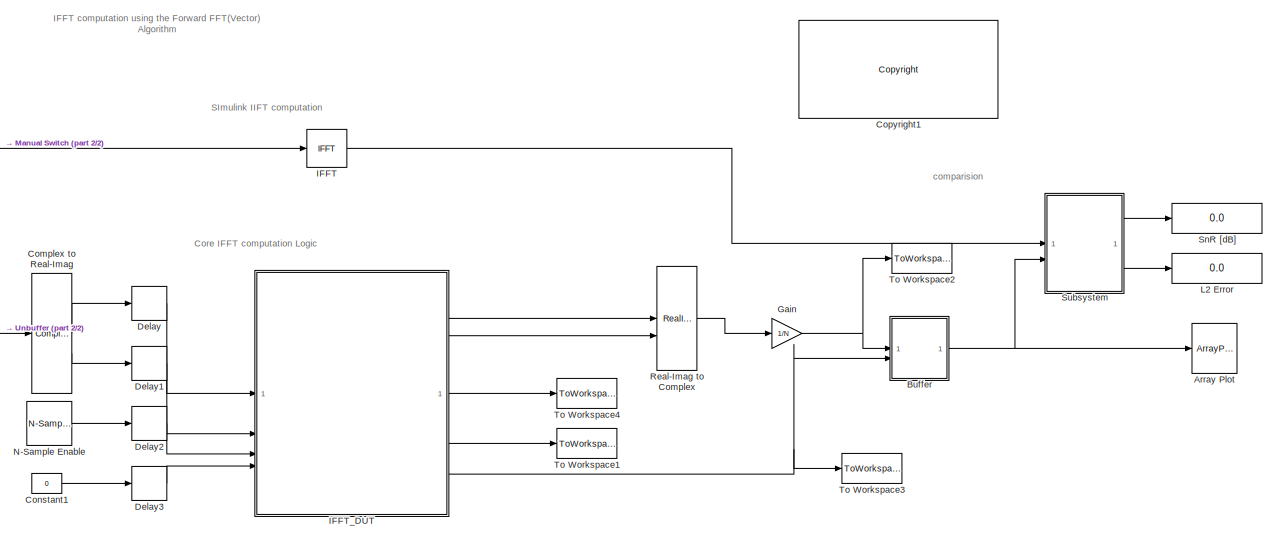
[diagram: root canvas - part 1/2, most of the canvas]
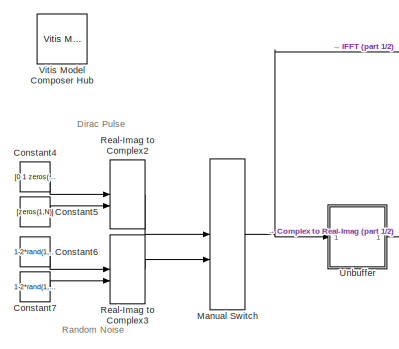
[diagram: root canvas - part 2/2, middle left region]
MODEL slx_039d1c355cd0
KIND model
CONFIG AbsTol = auto
CONFIG EnableMultiTasking = off
CONFIG FixedStep = auto
CONFIG MaxStep = auto
CONFIG MinStep = auto
CONFIG PreLoadFcn = N=1024;\nSSR=4;
CONFIG RelTol = 1e-3
CONFIG SampleTimeConstraint = Unconstrained
CONFIG SolverName = VariableStepAuto
CONFIG StartTime = 0.0
CONFIG StopTime = 2E-9*N/SSR*8
BLOCK [ArrayPlot] Array Plot
  DefaultConfigurationName = dsp.scopes.ArrayPlotBlockSpecification
  GraphicalSettings = {"Style":{"BackgroundColor":[0.1568627450980392,0.1568627450980392,0.1568627450980392],"AxesColor":[0,0,0],"LabelsColor":[0.6862745098039216,0.6862745098039216,0.6862745098039216],"LineStyle":["-","-"],"LineColor":[[1,1,0.06666666666666667],[0.07450980392156863,0.6235294117647059,1]],"LineWidth":[1.5,1.5],"Marker":["o","o"],"FontSize":"small"}}
  ShowLegend = on
  WasSavedAsWebScope = on
  WindowPosition = [1068.000000,318.000000,724.000000,431.000000,]
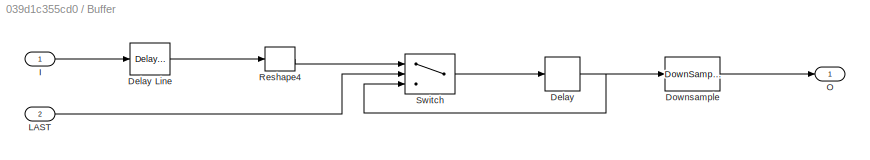
BLOCK [SubSystem] Buffer
BLOCK [Delay] Buffer/Delay
  DelayLength = 1
  InputPortMap = u0
BLOCK [Reference] Buffer/Delay Line  REF=dspbuff3/Delay Line
  SourceBlock = dspbuff3/Delay Line
  SourceType = Delay Line
  UserDataPersistent = on
BLOCK [DownSample] Buffer/Downsample
  InputProcessing = Elements as channels (sample based)
  N = N/SSR
  RateOptions = Allow multirate processing
BLOCK [Inport] Buffer/I
BLOCK [Inport] Buffer/LAST
  Port = 2
BLOCK [Outport] Buffer/O
  VectorParamsAs1DForOutWhenUnconnected = off
BLOCK [Reshape] Buffer/Reshape4
  OutputDimensions = [256,4]
BLOCK [Switch] Buffer/Switch
  Criteria = u2 > Threshold
  InputSameDT = off
  SaturateOnIntegerOverflow = off
  Threshold = 0.5
BLOCK [ComplexToRealImag] Complex to Real-Imag
BLOCK [Constant] Constant1
  SampleTime = -1
  Value = 0
BLOCK [Constant] Constant4
  SampleTime = -1
  Value = [0 1 zeros(1,N-2)]
BLOCK [Constant] Constant5
  SampleTime = -1
  Value = [zeros(1,N)]
BLOCK [Constant] Constant6
  SampleTime = -1
  Value = 1-2*rand(1,N)
BLOCK [Constant] Constant7
  SampleTime = -1
  Value = 1-2*rand(1,N)
BLOCK [Reference] Copyright1  REF=hdlUtilities/<copyright redacted>
  SourceBlock = hdlUtilities/<copyright redacted>
  SourceType = Xilinx <copyright redacted>
BLOCK [Delay] Delay
  DelayLength = 1
  InputPortMap = u0
BLOCK [Delay] Delay1
  DelayLength = 1
  InputPortMap = u0
BLOCK [Delay] Delay2
  DelayLength = 1
  InputPortMap = u0
BLOCK [Delay] Delay3
  DelayLength = 1
  InputPortMap = u0
BLOCK [Gain] Gain
  Gain = 1/N
BLOCK [Reference] IFFT  REF=dspxfrm3/IFFT
  SourceBlock = dspxfrm3/IFFT
  SourceType = IFFT
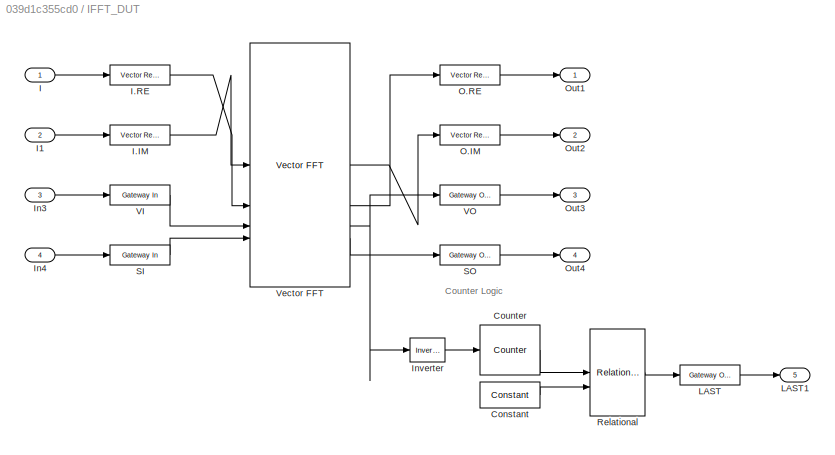
BLOCK [SubSystem] IFFT_DUT
BLOCK [Reference] IFFT_DUT/Constant  REF=hdlBasic/Constant
  SourceBlock = hdlBasic/Constant
  SourceType = Constant Block Block
BLOCK [Reference] IFFT_DUT/Counter  REF=hdlBasic/Counter
  SourceBlock = hdlBasic/Counter
  SourceType = Counter Block
BLOCK [Inport] IFFT_DUT/I
BLOCK [Reference] IFFT_DUT/I.IM  REF=hdlSSR/Vector Real Gateway In
  SourceBlock = hdlSSR/Vector Real Gateway In
  SourceType = Xilinx Vector Gateway In Block
BLOCK [Reference] IFFT_DUT/I.RE  REF=hdlSSR/Vector Real Gateway In
  SourceBlock = hdlSSR/Vector Real Gateway In
  SourceType = Xilinx Vector Gateway In Block
BLOCK [Inport] IFFT_DUT/I1
  Port = 2
BLOCK [Inport] IFFT_DUT/In3
  Port = 3
BLOCK [Inport] IFFT_DUT/In4
  Port = 4
BLOCK [Reference] IFFT_DUT/Inverter  REF=hdlBasic/Inverter
  SourceBlock = hdlBasic/Inverter
  SourceType = Inverter Block
BLOCK [Reference] IFFT_DUT/LAST  REF=hdlBasic/Gateway Out
  SourceBlock = hdlBasic/Gateway Out
  SourceType = Gateway Out Block
BLOCK [Outport] IFFT_DUT/LAST1
  Port = 5
BLOCK [Reference] IFFT_DUT/O.IM  REF=hdlSSR/Vector Real Gateway Out
  SourceBlock = hdlSSR/Vector Real Gateway Out
  SourceType = Xilinx Vector Gateway Out Block
BLOCK [Reference] IFFT_DUT/O.RE  REF=hdlSSR/Vector Real Gateway Out
  SourceBlock = hdlSSR/Vector Real Gateway Out
  SourceType = Xilinx Vector Gateway Out Block
BLOCK [Outport] IFFT_DUT/Out1
BLOCK [Outport] IFFT_DUT/Out2
  Port = 2
BLOCK [Outport] IFFT_DUT/Out3
  Port = 3
BLOCK [Outport] IFFT_DUT/Out4
  Port = 4
BLOCK [Reference] IFFT_DUT/Relational  REF=hdlBasic/Relational
  SourceBlock = hdlBasic/Relational
  SourceType = Arithmetic Relational Operator Block
BLOCK [Reference] IFFT_DUT/SI  REF=hdlBasic/Gateway In
  SourceBlock = hdlBasic/Gateway In
  SourceType = Gateway In Block
BLOCK [Reference] IFFT_DUT/SO  REF=hdlBasic/Gateway Out
  SourceBlock = hdlBasic/Gateway Out
  SourceType = Gateway Out Block
BLOCK [Reference] IFFT_DUT/VI  REF=hdlBasic/Gateway In
  SourceBlock = hdlBasic/Gateway In
  SourceType = Gateway In Block
BLOCK [Reference] IFFT_DUT/VO  REF=hdlBasic/Gateway Out
  SourceBlock = hdlBasic/Gateway Out
  SourceType = Gateway Out Block
BLOCK [Reference] IFFT_DUT/Vector FFT  REF=hdlSSR/Vector FFT
  SourceBlock = hdlSSR/Vector FFT
  SourceType = Xilinx Vector FFT Block
BLOCK [Display] L2 Error
  Decimation = 1
BLOCK [ManualSwitch] Manual Switch
  CurrentSetting = 0
BLOCK [Reference] N-Sample Enable  REF=dspswit3/N-Sample
Enable
  SourceBlock = dspswit3/N-Sample\nEnable
  SourceType = N-Sample Enable
BLOCK [RealImagToComplex] Real-Imag to Complex
BLOCK [RealImagToComplex] Real-Imag to Complex2
BLOCK [RealImagToComplex] Real-Imag to Complex3
BLOCK [Display] SnR [dB]
  Decimation = 1
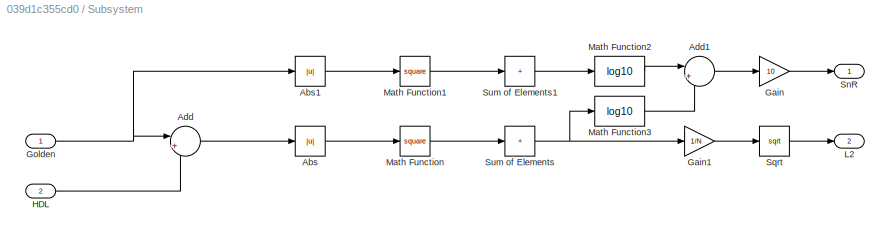
BLOCK [SubSystem] Subsystem
BLOCK [Abs] Subsystem/Abs
  SaturateOnIntegerOverflow = off
BLOCK [Abs] Subsystem/Abs1
  SaturateOnIntegerOverflow = off
BLOCK [Sum] Subsystem/Add
  Inputs = |+-
BLOCK [Sum] Subsystem/Add1
  Inputs = |+-
BLOCK [Gain] Subsystem/Gain
  Gain = 10
BLOCK [Gain] Subsystem/Gain1
  Gain = 1/N
BLOCK [Inport] Subsystem/Golden
BLOCK [Inport] Subsystem/HDL
  Port = 2
BLOCK [Outport] Subsystem/L2
  Port = 2
  VectorParamsAs1DForOutWhenUnconnected = off
BLOCK [Math] Subsystem/Math Function
  Operator = square
  SignedPower = on
BLOCK [Math] Subsystem/Math Function1
  Operator = square
  SignedPower = on
BLOCK [Math] Subsystem/Math Function2
  Operator = log10
  SignedPower = on
BLOCK [Math] Subsystem/Math Function3
  Operator = log10
  SignedPower = on
BLOCK [Outport] Subsystem/SnR
  VectorParamsAs1DForOutWhenUnconnected = off
BLOCK [Sqrt] Subsystem/Sqrt
BLOCK [Sum] Subsystem/Sum of Elements
  IconShape = rectangular
  Inputs = +
BLOCK [Sum] Subsystem/Sum of Elements1
  IconShape = rectangular
  Inputs = +
BLOCK [ToWorkspace] To Workspace1
  FixptAsFi = on
  MaxDataPoints = inf
  SampleTime = -1
  VariableName = SO
BLOCK [ToWorkspace] To Workspace2
  FixptAsFi = on
  MaxDataPoints = inf
  SampleTime = -1
  VariableName = O
BLOCK [ToWorkspace] To Workspace3
  FixptAsFi = on
  MaxDataPoints = inf
  SampleTime = -1
  VariableName = LAST
BLOCK [ToWorkspace] To Workspace4
  FixptAsFi = on
  MaxDataPoints = inf
  SampleTime = -1
  VariableName = VO
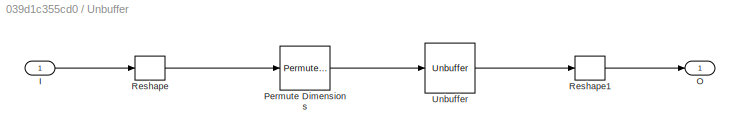
BLOCK [SubSystem] Unbuffer
BLOCK [Inport] Unbuffer/I
BLOCK [Outport] Unbuffer/O
  VectorParamsAs1DForOutWhenUnconnected = off
BLOCK [PermuteDimensions] Unbuffer/Permute Dimensions
BLOCK [Reshape] Unbuffer/Reshape
  OutputDimensionality = Customize
  OutputDimensions = [SSR,N/SSR]
BLOCK [Reshape] Unbuffer/Reshape1
  OutputDimensions = [256,4]
BLOCK [Unbuffer] Unbuffer/Unbuffer
BLOCK [Reference] Vitis Model Composer Hub  REF=vmcUtilities/Vitis Model Composer Hub
  SourceBlock = vmcUtilities/Vitis Model Composer Hub
  SourceType = VMC Hub
  Tag = genX
  UserDataPersistent = on
ANNOTATION (root): Core IFFT computation Logic
ANNOTATION (root): comparision
ANNOTATION (root): Dirac Pulse
ANNOTATION (root): IFFT computation using the Forward FFT(Vector) Algorithm
ANNOTATION (root): Random Noise
ANNOTATION (root): SImulink IIFT computation
ANNOTATION IFFT_DUT: Counter Logic
LINE Buffer/Delay Line:1 -> Buffer/Reshape4:1
NET Buffer/Delay:1 -> Buffer/Downsample:1, Buffer/Switch:3
LINE Buffer/Downsample:1 -> Buffer/O:1
LINE Buffer/I:1 -> Buffer/Delay Line:1
LINE Buffer/LAST:1 -> Buffer/Switch:2
LINE Buffer/Reshape4:1 -> Buffer/Switch:1
LINE Buffer/Switch:1 -> Buffer/Delay:1
NET Buffer:1 -> Array Plot:1, Subsystem:2
LINE Complex to Real-Imag:1 -> Delay:1
LINE Complex to Real-Imag:2 -> Delay1:1
LINE Constant1:1 -> Delay3:1
LINE Constant4:1 -> Real-Imag to Complex2:1
LINE Constant5:1 -> Real-Imag to Complex2:2
LINE Constant6:1 -> Real-Imag to Complex3:1
LINE Constant7:1 -> Real-Imag to Complex3:2
LINE Delay1:1 -> IFFT_DUT:2
LINE Delay2:1 -> IFFT_DUT:3
LINE Delay3:1 -> IFFT_DUT:4
LINE Delay:1 -> IFFT_DUT:1
NET Gain:1 -> Buffer:1, To Workspace2:1
LINE IFFT:1 -> Subsystem:1
LINE IFFT_DUT/Constant:1 -> IFFT_DUT/Relational:2
LINE IFFT_DUT/Counter:1 -> IFFT_DUT/Relational:1
LINE IFFT_DUT/I.IM:1 -> IFFT_DUT/Vector FFT:1
LINE IFFT_DUT/I.RE:1 -> IFFT_DUT/Vector FFT:2
LINE IFFT_DUT/I1:1 -> IFFT_DUT/I.IM:1
LINE IFFT_DUT/I:1 -> IFFT_DUT/I.RE:1
LINE IFFT_DUT/In3:1 -> IFFT_DUT/VI:1
LINE IFFT_DUT/In4:1 -> IFFT_DUT/SI:1
LINE IFFT_DUT/Inverter:1 -> IFFT_DUT/Counter:1
LINE IFFT_DUT/LAST:1 -> IFFT_DUT/LAST1:1
LINE IFFT_DUT/O.IM:1 -> IFFT_DUT/Out2:1
LINE IFFT_DUT/O.RE:1 -> IFFT_DUT/Out1:1
LINE IFFT_DUT/Relational:1 -> IFFT_DUT/LAST:1
LINE IFFT_DUT/SI:1 -> IFFT_DUT/Vector FFT:4
LINE IFFT_DUT/SO:1 -> IFFT_DUT/Out4:1
LINE IFFT_DUT/VI:1 -> IFFT_DUT/Vector FFT:3
LINE IFFT_DUT/VO:1 -> IFFT_DUT/Out3:1
LINE IFFT_DUT/Vector FFT:1 -> IFFT_DUT/O.IM:1
LINE IFFT_DUT/Vector FFT:2 -> IFFT_DUT/O.RE:1
NET IFFT_DUT/Vector FFT:3 -> IFFT_DUT/Inverter:1, IFFT_DUT/VO:1
LINE IFFT_DUT/Vector FFT:4 -> IFFT_DUT/SO:1
LINE IFFT_DUT:1 -> Real-Imag to Complex:1
LINE IFFT_DUT:2 -> Real-Imag to Complex:2
LINE IFFT_DUT:3 -> To Workspace4:1
LINE IFFT_DUT:4 -> To Workspace1:1
NET IFFT_DUT:5 -> Buffer:2, To Workspace3:1
NET Manual Switch:1 -> IFFT:1, Unbuffer:1
LINE N-Sample Enable:1 -> Delay2:1
LINE Real-Imag to Complex2:1 -> Manual Switch:1
LINE Real-Imag to Complex3:1 -> Manual Switch:2
LINE Real-Imag to Complex:1 -> Gain:1
LINE Subsystem/Abs1:1 -> Subsystem/Math Function1:1
LINE Subsystem/Abs:1 -> Subsystem/Math Function:1
LINE Subsystem/Add1:1 -> Subsystem/Gain:1
LINE Subsystem/Add:1 -> Subsystem/Abs:1
LINE Subsystem/Gain1:1 -> Subsystem/Sqrt:1
LINE Subsystem/Gain:1 -> Subsystem/SnR:1
NET Subsystem/Golden:1 -> Subsystem/Abs1:1, Subsystem/Add:1
LINE Subsystem/HDL:1 -> Subsystem/Add:2
LINE Subsystem/Math Function1:1 -> Subsystem/Sum of Elements1:1
LINE Subsystem/Math Function2:1 -> Subsystem/Add1:1
LINE Subsystem/Math Function3:1 -> Subsystem/Add1:2
LINE Subsystem/Math Function:1 -> Subsystem/Sum of Elements:1
LINE Subsystem/Sqrt:1 -> Subsystem/L2:1
LINE Subsystem/Sum of Elements1:1 -> Subsystem/Math Function2:1
NET Subsystem/Sum of Elements:1 -> Subsystem/Gain1:1, Subsystem/Math Function3:1
LINE Subsystem:1 -> SnR [dB]:1
LINE Subsystem:2 -> L2 Error:1
LINE Unbuffer/I:1 -> Unbuffer/Reshape:1
LINE Unbuffer/Permute Dimensions:1 -> Unbuffer/Unbuffer:1
LINE Unbuffer/Reshape1:1 -> Unbuffer/O:1
LINE Unbuffer/Reshape:1 -> Unbuffer/Permute Dimensions:1
LINE Unbuffer/Unbuffer:1 -> Unbuffer/Reshape1:1
LINE Unbuffer:1 -> Complex to Real-Imag:1
note: NET lines group one-source signal fan-out (src -> all destinations, sorted); 1:1 wires keep LINE
